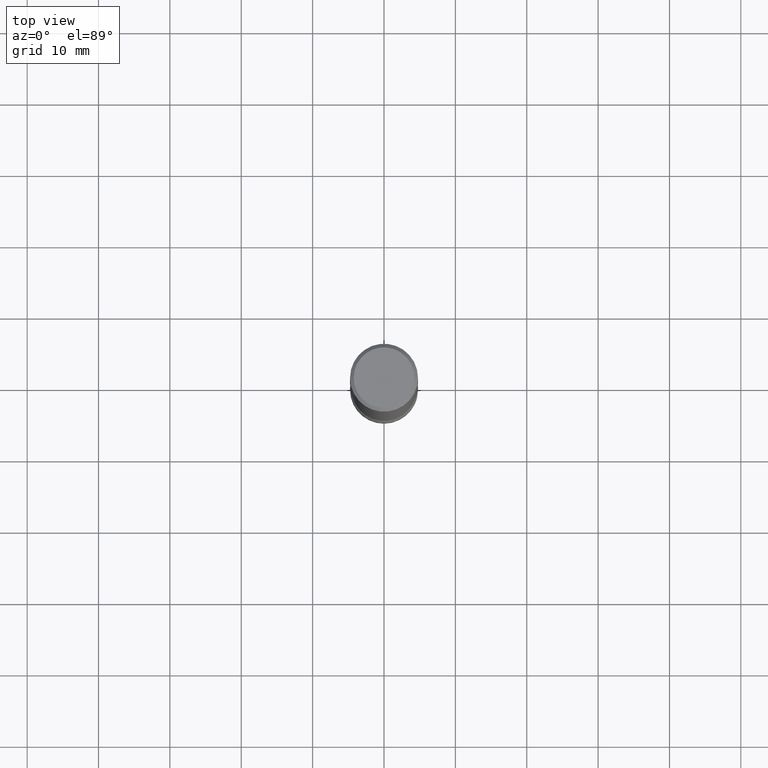
[diagram: clean part render]
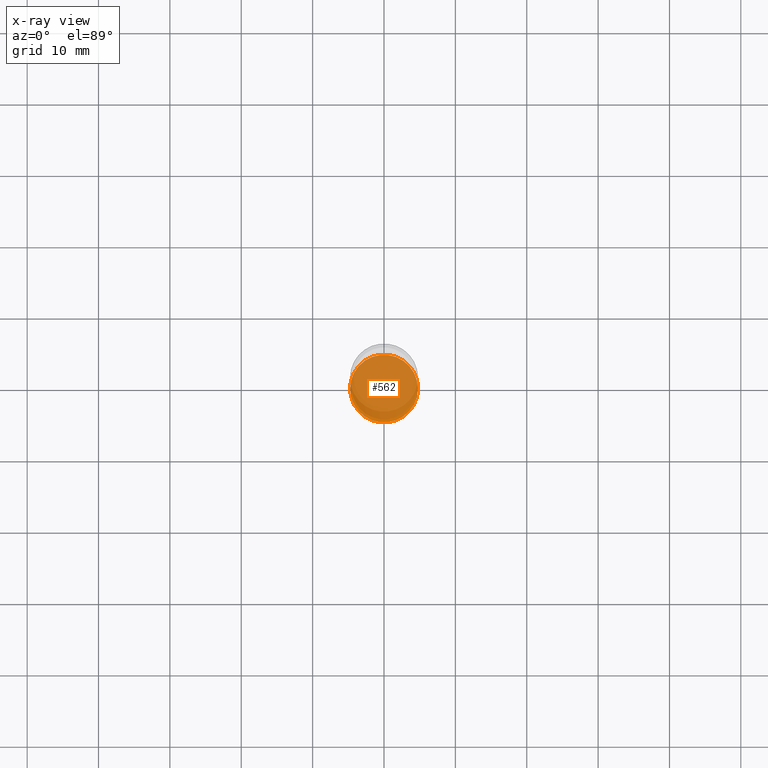
[diagram: x-ray — body ghosted, one internal face saturated and labeled with its STEP entity id]
A machine part, top view, then the same camera in x-ray: the body is ghosted and one INTERNAL B-rep face — a face not visible from any outside direction — is saturated and labeled: STEP entity #562.
In plain terms, the highlighted planar face has unit normal (0, -0, -1).
Its self-contained STEP definition (entity closure, byte-faithful):
#10 = DIRECTION ( 'NONE',  ( -1.000000000000000000, 6.982962677686265922E-15, -4.876176775795935793E-29 ) ) ;
#56 = CARTESIAN_POINT ( 'NONE',  ( 8.559140821647976968E-29, -1.222018468595100934E-14, -3.500000000000000000 ) ) ;
#58 = FACE_OUTER_BOUND ( 'NONE', #517, .T. ) ;
#125 = AXIS2_PLACEMENT_3D ( 'NONE', #194, #558, #516 ) ;
#149 = EDGE_CURVE ( 'NONE', #192, #311, #386, .T. ) ;
#158 = CARTESIAN_POINT ( 'NONE',  ( 1.305814020727414831E-15, 0.1869999999999874263, -3.500000000000000444 ) ) ;
#174 = CIRCLE ( 'NONE', #489, 0.1869999999999996387 ) ;
#184 = CARTESIAN_POINT ( 'NONE',  ( -0.1869999999999996387, -1.088960961525404312E-14, -3.500000000000000000 ) ) ;
#192 = VERTEX_POINT ( 'NONE', #344 ) ;
#194 = CARTESIAN_POINT ( 'NONE',  ( 8.559140821647976968E-29, -1.222018468595100934E-14, -3.500000000000000000 ) ) ;
#233 = PLANE ( 'NONE',  #412 ) ;
#255 = ORIENTED_EDGE ( 'NONE', *, *, #358, .T. ) ;
#294 = ORIENTED_EDGE ( 'NONE', *, *, #149, .T. ) ;
#311 = VERTEX_POINT ( 'NONE', #184 ) ;
#315 = DIRECTION ( 'NONE',  ( 2.445468806185136597E-29, -3.491481338843145583E-15, -1.000000000000000000 ) ) ;
#344 = CARTESIAN_POINT ( 'NONE',  ( 0.1869999999999996387, -1.352661159257241509E-14, -3.500000000000000000 ) ) ;
#358 = EDGE_CURVE ( 'NONE', #311, #192, #174, .T. ) ;
#386 = CIRCLE ( 'NONE', #125, 0.1869999999999996387 ) ;
#406 = DIRECTION ( 'NONE',  ( -1.000000000000000000, 6.982962677686268288E-15, 0.000000000000000000 ) ) ;
#412 = AXIS2_PLACEMENT_3D ( 'NONE', #158, #414, #10 ) ;
#414 = DIRECTION ( 'NONE',  ( 2.438088387897960049E-29, -3.491481338843145188E-15, -1.000000000000000000 ) ) ;
#489 = AXIS2_PLACEMENT_3D ( 'NONE', #56, #315, #406 ) ;
#516 = DIRECTION ( 'NONE',  ( -1.000000000000000000, 6.982962677686268288E-15, 0.000000000000000000 ) ) ;
#517 = EDGE_LOOP ( 'NONE', ( #294, #255 ) ) ;
#558 = DIRECTION ( 'NONE',  ( 2.445468806185136597E-29, -3.491481338843145583E-15, -1.000000000000000000 ) ) ;
#562 = ADVANCED_FACE ( 'NONE', ( #58 ), #233, .T. ) ;